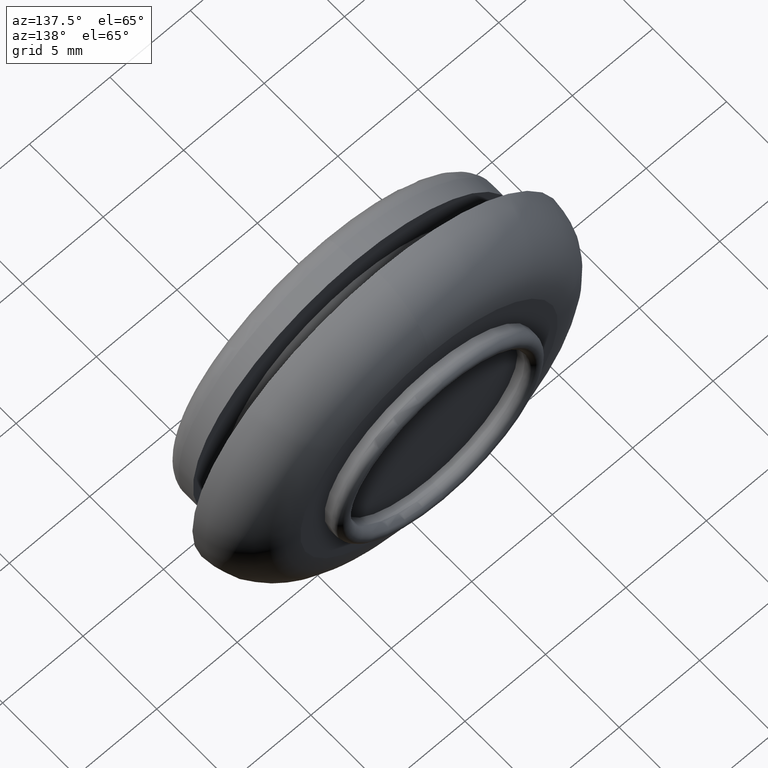
[diagram: clean part render]
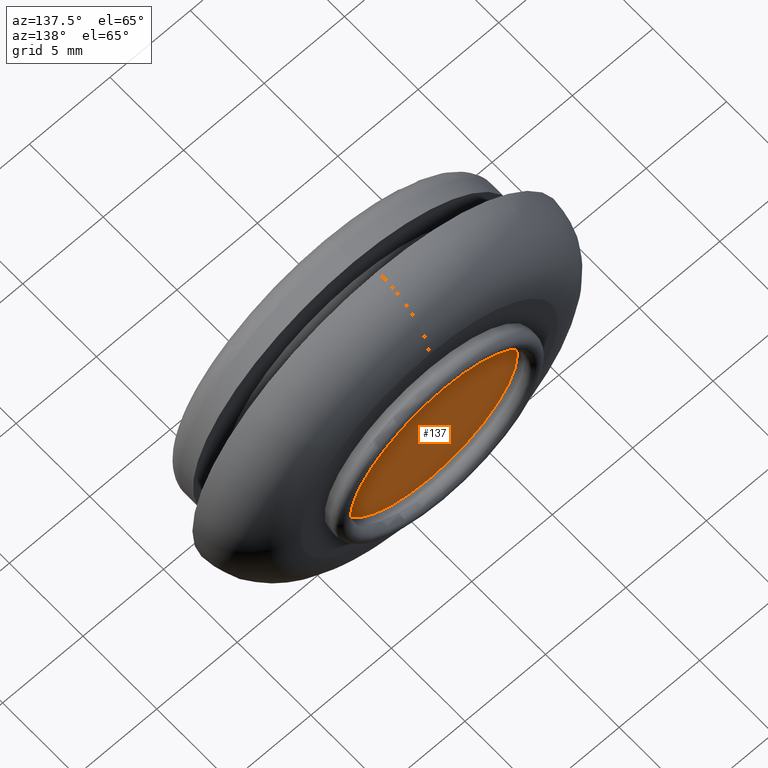
[diagram: same view with one face highlighted and labeled with its STEP entity id]
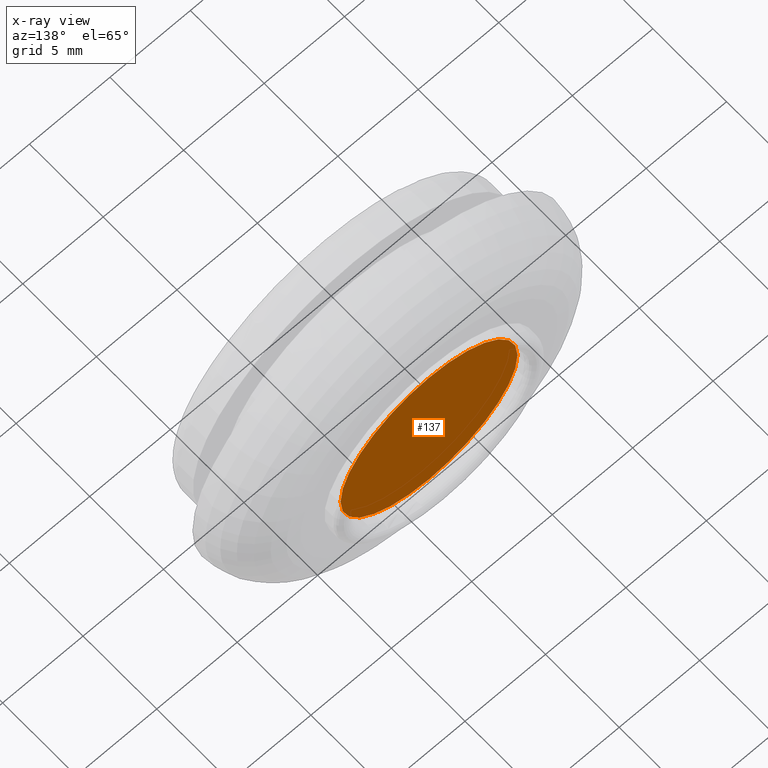
[diagram: x-ray of the same camera — body ghosted, the highlighted face saturated]
A machine part, auxiliary view. The second image highlights one B-rep face of the part: STEP entity #137.
The next image is the same camera in x-ray: the body ghosted, the highlighted face saturated — about 0% of this face is hidden behind the body in this view.
In plain terms, the highlighted planar face has unit normal (0, -1, 0).
Its self-contained STEP definition (entity closure, byte-faithful):
#9 = CIRCLE ( 'NONE', #593, 5.500000000000000000 ) ;
#14 = ORIENTED_EDGE ( 'NONE', *, *, #86, .F. ) ;
#32 = DIRECTION ( 'NONE',  ( 0.0000000000000000000, -1.000000000000000000, 0.0000000000000000000 ) ) ;
#63 = VERTEX_POINT ( 'NONE', #631 ) ;
#86 = EDGE_CURVE ( 'NONE', #88, #63, #425, .T. ) ;
#88 = VERTEX_POINT ( 'NONE', #256 ) ;
#102 = CARTESIAN_POINT ( 'NONE',  ( 0.0000000000000000000, 7.100000000000000500, 8.881784197001250400E-016 ) ) ;
#104 = DIRECTION ( 'NONE',  ( 0.0000000000000000000, -1.000000000000000000, 0.0000000000000000000 ) ) ;
#137 = ADVANCED_FACE ( 'NONE', ( #420 ), #146, .F. ) ;
#146 = PLANE ( 'NONE',  #615 ) ;
#173 = DIRECTION ( 'NONE',  ( 0.0000000000000000000, -1.000000000000000000, 0.0000000000000000000 ) ) ;
#178 = EDGE_CURVE ( 'NONE', #63, #88, #9, .T. ) ;
#202 = DIRECTION ( 'NONE',  ( 0.0000000000000000000, 0.0000000000000000000, -1.000000000000000000 ) ) ;
#256 = CARTESIAN_POINT ( 'NONE',  ( 6.735557395310442000E-016, 7.100000000000000500, 5.500000000000000000 ) ) ;
#258 = ORIENTED_EDGE ( 'NONE', *, *, #178, .F. ) ;
#328 = CARTESIAN_POINT ( 'NONE',  ( 0.0000000000000000000, 7.100000000000000500, -3.061515884555945100E-016 ) ) ;
#340 = DIRECTION ( 'NONE',  ( 0.0000000000000000000, 0.0000000000000000000, -1.000000000000000000 ) ) ;
#372 = AXIS2_PLACEMENT_3D ( 'NONE', #328, #173, #579 ) ;
#393 = CARTESIAN_POINT ( 'NONE',  ( 0.0000000000000000000, 7.100000000000000500, -3.061515884555945100E-016 ) ) ;
#420 = FACE_OUTER_BOUND ( 'NONE', #423, .T. ) ;
#423 = EDGE_LOOP ( 'NONE', ( #258, #14 ) ) ;
#425 = CIRCLE ( 'NONE', #372, 5.500000000000000000 ) ;
#579 = DIRECTION ( 'NONE',  ( 0.0000000000000000000, 0.0000000000000000000, -1.000000000000000000 ) ) ;
#593 = AXIS2_PLACEMENT_3D ( 'NONE', #393, #32, #340 ) ;
#615 = AXIS2_PLACEMENT_3D ( 'NONE', #102, #104, #202 ) ;
#631 = CARTESIAN_POINT ( 'NONE',  ( 0.0000000000000000000, 7.100000000000000500, -5.500000000000000000 ) ) ;